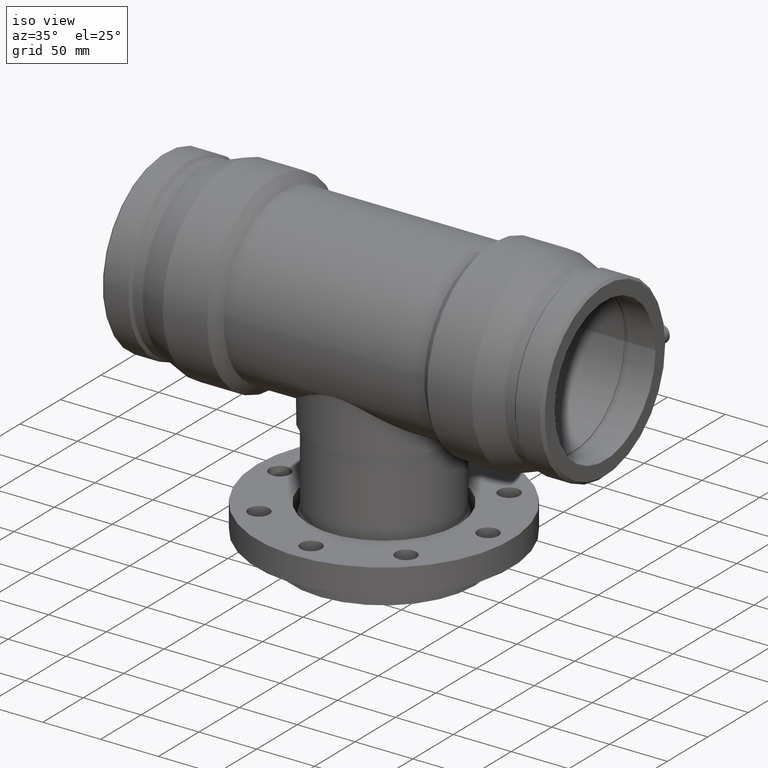
[diagram: clean part render]
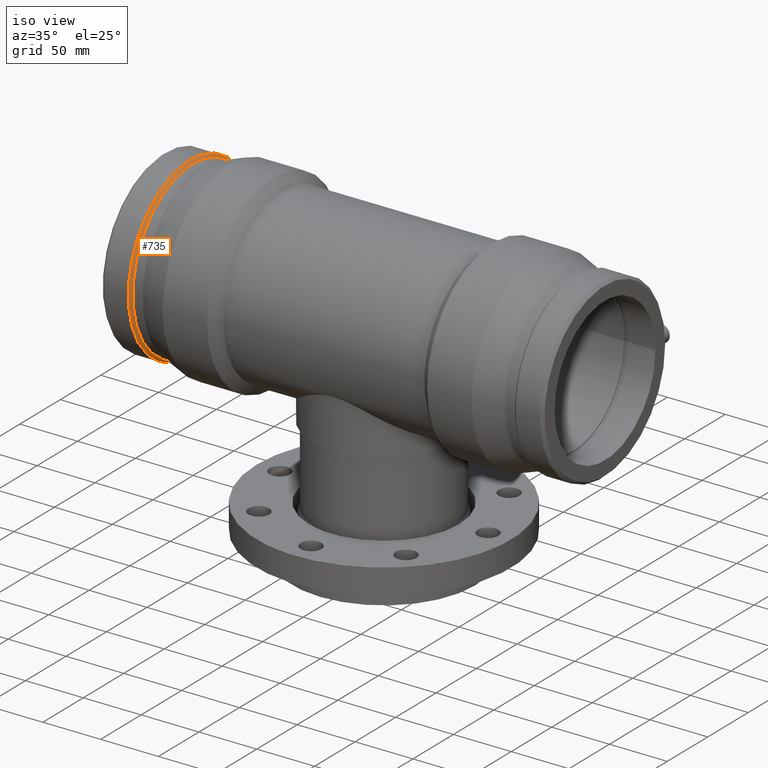
[diagram: same view with one face highlighted and labeled with its STEP entity id]
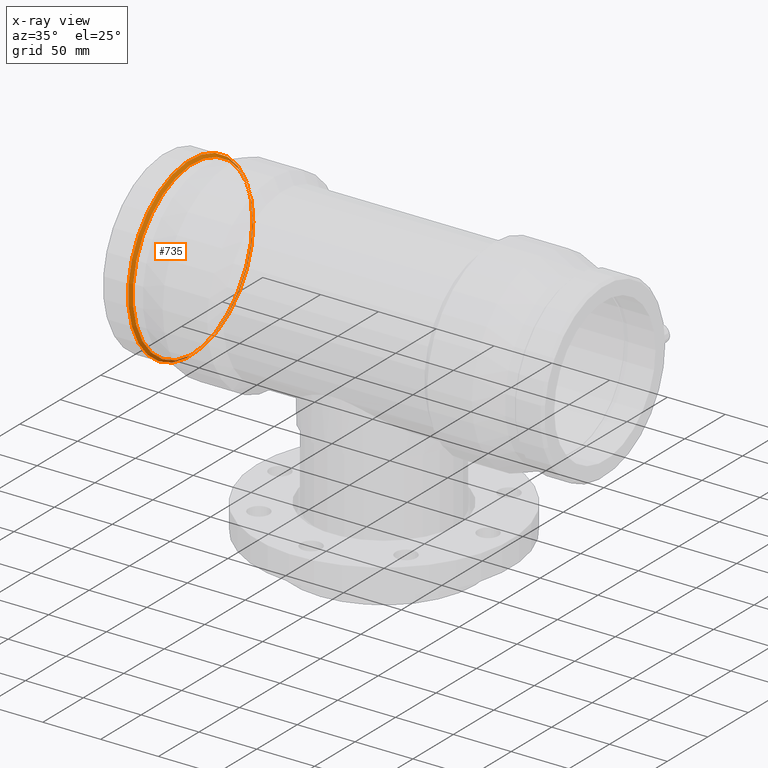
[diagram: x-ray of the same camera — body ghosted, the highlighted face saturated]
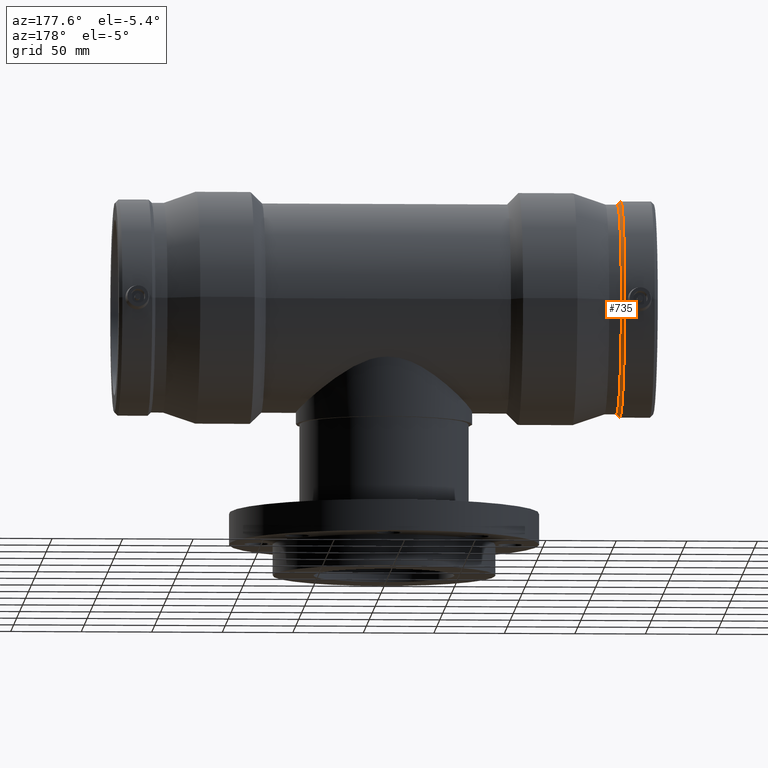
[diagram: same view with one face highlighted and labeled with its STEP entity id]
A machine part, iso view. The second image highlights one B-rep face of the part: STEP entity #735.
The next image is the same camera in x-ray: the body ghosted, the highlighted face saturated — about 14% of this face is hidden behind the body in this view.
A second angle (auxiliary view) of the same face is appended — the face is thin or edge-on in the first view.
In plain terms, the highlighted conical surface has half-angle 45 deg.
Its self-contained STEP definition (entity closure, byte-faithful):
#19=CONICAL_SURFACE('',#838,75.574125,45.0000000000001);
#95=FACE_BOUND('',#363,.T.);
#162=CIRCLE('',#837,76.725);
#163=CIRCLE('',#839,74.42325);
#251=FACE_OUTER_BOUND('',#362,.T.);
#362=EDGE_LOOP('',(#648));
#363=EDGE_LOOP('',(#649));
#465=VERTEX_POINT('',#1668);
#466=VERTEX_POINT('',#1671);
#535=EDGE_CURVE('',#465,#465,#162,.T.);
#536=EDGE_CURVE('',#466,#466,#163,.T.);
#648=ORIENTED_EDGE('',*,*,#535,.T.);
#649=ORIENTED_EDGE('',*,*,#536,.F.);
#735=ADVANCED_FACE('',(#251,#95),#19,.T.);
#837=AXIS2_PLACEMENT_3D('',#1669,#1039,#1040);
#838=AXIS2_PLACEMENT_3D('',#1670,#1041,#1042);
#839=AXIS2_PLACEMENT_3D('',#1672,#1043,#1044);
#1039=DIRECTION('center_axis',(1.,0.,0.));
#1040=DIRECTION('ref_axis',(0.,0.,-1.));
#1041=DIRECTION('center_axis',(-1.,0.,0.));
#1042=DIRECTION('ref_axis',(0.,1.,0.));
#1043=DIRECTION('center_axis',(1.,0.,0.));
#1044=DIRECTION('ref_axis',(0.,0.,-1.));
#1668=CARTESIAN_POINT('',(-167.50175,76.725,0.));
#1669=CARTESIAN_POINT('Origin',(-167.50175,0.,0.));
#1670=CARTESIAN_POINT('Origin',(-166.350875,0.,0.));
#1671=CARTESIAN_POINT('',(-165.2,74.42325,0.));
#1672=CARTESIAN_POINT('Origin',(-165.2,0.,0.));